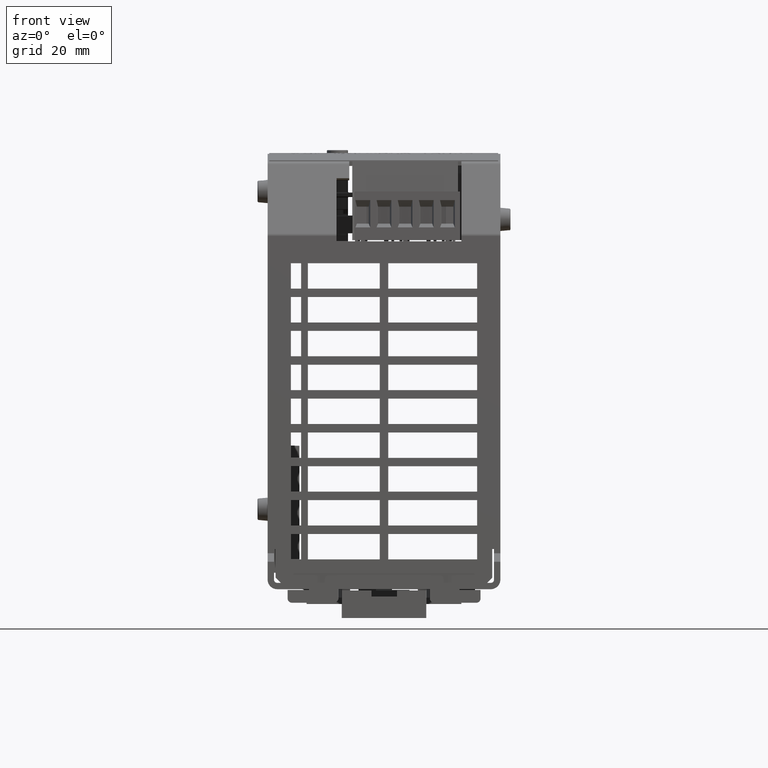
[diagram: clean part render]
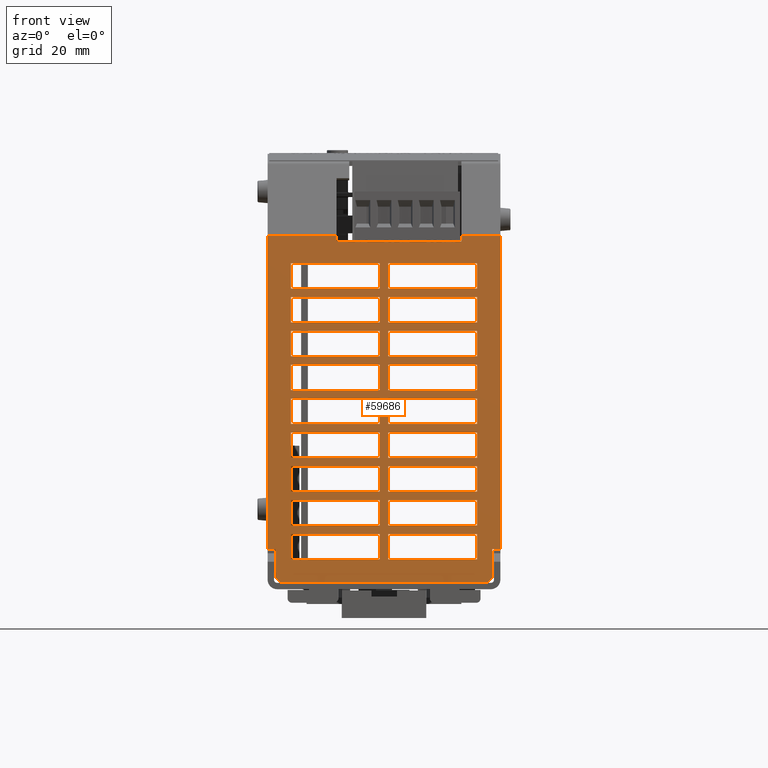
[diagram: same view with one face highlighted and labeled with its STEP entity id]
A machine part, front view. The second image highlights one B-rep face of the part: STEP entity #59686.
In plain terms, the highlighted planar face has unit normal (0, -1, 0).
Its self-contained STEP definition (entity closure, byte-faithful):
#58955=CARTESIAN_POINT('',(1.082677165354314,-2.204724409448971,3.297102970390315));
#58956=DIRECTION('',(0.0,-1.0,0.0));
#58957=DIRECTION('',(1.0,0.0,0.0));
#58958=AXIS2_PLACEMENT_3D('',#58955,#58956,#58957);
#58959=PLANE('',#58958);
#58960=CARTESIAN_POINT('',(0.960629921259829,-2.204724409448818,0.059055118110215));
#58961=VERTEX_POINT('',#58960);
#58962=CARTESIAN_POINT('',(-0.960629921259622,-2.204724409448821,0.059055118110235));
#58963=VERTEX_POINT('',#58962);
#58964=CARTESIAN_POINT('',(0.960629921259829,-2.204724409448971,0.059055118110238));
#58965=DIRECTION('',(-1.0,0.0,0.0));
#58966=VECTOR('',#58965,1.921259842519451);
#58967=LINE('',#58964,#58966);
#58968=EDGE_CURVE('',#58961,#58963,#58967,.T.);
#58969=ORIENTED_EDGE('',*,*,#58968,.F.);
#58970=CARTESIAN_POINT('',(1.007874015748031,-2.204724409448821,0.10629921259838));
#58971=VERTEX_POINT('',#58970);
#58972=CARTESIAN_POINT('',(0.960629921259829,-2.204724409448818,0.059055118110215));
#58973=DIRECTION('',(0.707106781186823,-3.988035E-014,0.707106781186272));
#58974=VECTOR('',#58973,0.066813239167225);
#58975=LINE('',#58972,#58974);
#58976=EDGE_CURVE('',#58961,#58971,#58975,.T.);
#58977=ORIENTED_EDGE('',*,*,#58976,.T.);
#58978=CARTESIAN_POINT('',(1.007874015748039,-2.20472440944882,0.374015748031467));
#58979=VERTEX_POINT('',#58978);
#58980=CARTESIAN_POINT('',(1.007874015748031,-2.204724409448821,0.10629921259838));
#58981=DIRECTION('',(0.0,0.0,1.0));
#58982=VECTOR('',#58981,0.267716535433087);
#58983=LINE('',#58980,#58982);
#58984=EDGE_CURVE('',#58971,#58979,#58983,.T.);
#58985=ORIENTED_EDGE('',*,*,#58984,.T.);
#58986=CARTESIAN_POINT('',(1.082677165354312,-2.204724409448824,0.374015748031457));
#58987=VERTEX_POINT('',#58986);
#58988=CARTESIAN_POINT('',(1.007874015748039,-2.20472440944882,0.374015748031467));
#58989=DIRECTION('',(1.0,-5.343094E-014,-1.306090E-013));
#58990=VECTOR('',#58989,0.074803149606273);
#58991=LINE('',#58988,#58990);
#58992=EDGE_CURVE('',#58979,#58987,#58991,.T.);
#58993=ORIENTED_EDGE('',*,*,#58992,.T.);
#58994=CARTESIAN_POINT('',(1.082677165354312,-2.204724409448827,3.286387887925589));
#58995=VERTEX_POINT('',#58994);
#58996=CARTESIAN_POINT('',(1.082677165354312,-2.204724409448824,0.374015748031457));
#58997=DIRECTION('',(0.0,0.0,1.0));
#58998=VECTOR('',#58997,2.912372139894131);
#58999=LINE('',#58996,#58998);
#59000=EDGE_CURVE('',#58987,#58995,#58999,.T.);
#59001=ORIENTED_EDGE('',*,*,#59000,.T.);
#59002=CARTESIAN_POINT('',(0.720472440944872,-2.204724409448827,3.286387887925584));
#59003=VERTEX_POINT('',#59002);
#59004=CARTESIAN_POINT('',(0.720472440944872,-2.204724409448827,3.286387887925584));
#59005=DIRECTION('',(1.0,0.0,0.0));
#59006=VECTOR('',#59005,0.36220472440944);
#59007=LINE('',#59004,#59006);
#59008=EDGE_CURVE('',#59003,#58995,#59007,.T.);
#59009=ORIENTED_EDGE('',*,*,#59008,.F.);
#59010=CARTESIAN_POINT('',(0.720472440944872,-2.204724409448971,3.237014947515734));
#59011=VERTEX_POINT('',#59010);
#59012=CARTESIAN_POINT('',(0.720472440944872,-2.204724409448827,3.286387887925584));
#59013=DIRECTION('',(0.0,-2.905252E-012,-1.0));
#59014=VECTOR('',#59013,0.04937294040985);
#59015=LINE('',#59012,#59014);
#59016=EDGE_CURVE('',#59003,#59011,#59015,.T.);
#59017=ORIENTED_EDGE('',*,*,#59016,.T.);
#59018=CARTESIAN_POINT('',(-0.440944881889774,-2.204724409448971,3.237014947515734));
#59019=VERTEX_POINT('',#59018);
#59020=CARTESIAN_POINT('',(0.720472440944872,-2.204724409448971,3.237014947515734));
#59021=DIRECTION('',(-1.0,0.0,0.0));
#59022=VECTOR('',#59021,1.161417322834647);
#59023=LINE('',#59020,#59022);
#59024=EDGE_CURVE('',#59011,#59019,#59023,.T.);
#59025=ORIENTED_EDGE('',*,*,#59024,.T.);
#59026=CARTESIAN_POINT('',(-0.440944881889774,-2.204724409448827,3.286387887925584));
#59027=VERTEX_POINT('',#59026);
#59028=CARTESIAN_POINT('',(-0.440944881889774,-2.204724409448971,3.237014947515734));
#59029=DIRECTION('',(0.0,2.905252E-012,1.0));
#59030=VECTOR('',#59029,0.04937294040985);
#59031=LINE('',#59028,#59030);
#59032=EDGE_CURVE('',#59019,#59027,#59031,.T.);
#59033=ORIENTED_EDGE('',*,*,#59032,.T.);
#59034=CARTESIAN_POINT('',(-1.08267716535435,-2.204724409448827,3.286387887925585));
#59035=VERTEX_POINT('',#59034);
#59036=CARTESIAN_POINT('',(-1.08267716535435,-2.204724409448827,3.286387887925585));
#59037=DIRECTION('',(1.0,0.0,0.0));
#59038=VECTOR('',#59037,0.641732283464575);
#59039=LINE('',#59036,#59038);
#59040=EDGE_CURVE('',#59035,#59027,#59039,.T.);
#59041=ORIENTED_EDGE('',*,*,#59040,.F.);
#59042=CARTESIAN_POINT('',(-1.082677165354348,-2.204724409448821,0.374015748031502));
#59043=VERTEX_POINT('',#59042);
#59044=CARTESIAN_POINT('',(-1.082677165354348,-2.204724409448821,0.374015748031502));
#59045=DIRECTION('',(0.0,0.0,1.0));
#59046=VECTOR('',#59045,2.912372139894083);
#59047=LINE('',#59044,#59046);
#59048=EDGE_CURVE('',#59043,#59035,#59047,.T.);
#59049=ORIENTED_EDGE('',*,*,#59048,.F.);
#59050=CARTESIAN_POINT('',(-1.007874015748046,-2.204724409448824,0.374015748031485));
#59051=VERTEX_POINT('',#59050);
#59052=CARTESIAN_POINT('',(-1.082677165354348,-2.204724409448821,0.374015748031502));
#59053=DIRECTION('',(1.0,-3.562063E-014,-2.270815E-013));
#59054=VECTOR('',#59053,0.074803149606303);
#59055=LINE('',#59052,#59054);
#59056=EDGE_CURVE('',#59043,#59051,#59055,.T.);
#59057=ORIENTED_EDGE('',*,*,#59056,.T.);
#59058=CARTESIAN_POINT('',(-1.007874015748047,-2.204724409448821,0.106299212598639));
#59059=VERTEX_POINT('',#59058);
#59060=CARTESIAN_POINT('',(-1.007874015748046,-2.204724409448824,0.374015748031485));
#59061=DIRECTION('',(0.0,0.0,-1.0));
#59062=VECTOR('',#59061,0.267716535432846);
#59063=LINE('',#59060,#59062);
#59064=EDGE_CURVE('',#59051,#59059,#59063,.T.);
#59065=ORIENTED_EDGE('',*,*,#59064,.T.);
#59066=CARTESIAN_POINT('',(-1.007874015748047,-2.204724409448821,0.106299212598639));
#59067=DIRECTION('',(0.707106781186703,0.0,-0.707106781186392));
#59068=VECTOR('',#59067,0.066813239167552);
#59069=LINE('',#59066,#59068);
#59070=EDGE_CURVE('',#59059,#58963,#59069,.T.);
#59071=ORIENTED_EDGE('',*,*,#59070,.T.);
#59072=EDGE_LOOP('',(#58969,#58977,#58985,#58993,#59001,#59009,#59017,#59025,#59033,#59041,#59049,#59057,#59065,#59071));
#59073=FACE_OUTER_BOUND('',#59072,.T.);
#59074=CARTESIAN_POINT('',(-0.866141732283349,-2.204724409448823,0.277559055118096));
#59075=VERTEX_POINT('',#59074);
#59076=CARTESIAN_POINT('',(-0.866141732283349,-2.204724409448823,0.513779527559042));
#59077=VERTEX_POINT('',#59076);
#59078=CARTESIAN_POINT('',(-0.866141732283349,-2.204724409448823,0.277559055118096));
#59079=DIRECTION('',(0.0,0.0,1.0));
#59080=VECTOR('',#59079,0.236220472440946);
#59081=LINE('',#59078,#59080);
#59082=EDGE_CURVE('',#59075,#59077,#59081,.T.);
#59083=ORIENTED_EDGE('',*,*,#59082,.T.);
#59084=CARTESIAN_POINT('',(-0.039370078740041,-2.204724409448823,0.513779527559042));
#59085=VERTEX_POINT('',#59084);
#59086=CARTESIAN_POINT('',(-0.866141732283349,-2.204724409448823,0.513779527559042));
#59087=DIRECTION('',(1.0,0.0,0.0));
#59088=VECTOR('',#59087,0.826771653543308);
#59089=LINE('',#59086,#59088);
#59090=EDGE_CURVE('',#59077,#59085,#59089,.T.);
#59091=ORIENTED_EDGE('',*,*,#59090,.T.);
#59092=CARTESIAN_POINT('',(-0.039370078740041,-2.204724409448823,0.277559055118096));
#59093=VERTEX_POINT('',#59092);
#59094=CARTESIAN_POINT('',(-0.039370078740041,-2.204724409448823,0.513779527559042));
#59095=DIRECTION('',(0.0,0.0,-1.0));
#59096=VECTOR('',#59095,0.236220472440946);
#59097=LINE('',#59094,#59096);
#59098=EDGE_CURVE('',#59085,#59093,#59097,.T.);
#59099=ORIENTED_EDGE('',*,*,#59098,.T.);
#59100=CARTESIAN_POINT('',(-0.039370078740041,-2.204724409448823,0.277559055118096));
#59101=DIRECTION('',(-1.0,0.0,0.0));
#59102=VECTOR('',#59101,0.826771653543307);
#59103=LINE('',#59100,#59102);
#59104=EDGE_CURVE('',#59093,#59075,#59103,.T.);
#59105=ORIENTED_EDGE('',*,*,#59104,.T.);
#59106=EDGE_LOOP('',(#59083,#59091,#59099,#59105));
#59107=FACE_BOUND('',#59106,.T.);
#59108=CARTESIAN_POINT('',(-0.866141732283348,-2.204724409448823,0.592519685039357));
#59109=VERTEX_POINT('',#59108);
#59110=CARTESIAN_POINT('',(-0.866141732283347,-2.204724409448824,0.828740157480302));
#59111=VERTEX_POINT('',#59110);
#59112=CARTESIAN_POINT('',(-0.866141732283348,-2.204724409448823,0.592519685039357));
#59113=DIRECTION('',(0.0,0.0,1.0));
#59114=VECTOR('',#59113,0.236220472440944);
#59115=LINE('',#59112,#59114);
#59116=EDGE_CURVE('',#59109,#59111,#59115,.T.);
#59117=ORIENTED_EDGE('',*,*,#59116,.T.);
#59118=CARTESIAN_POINT('',(-0.039370078740041,-2.204724409448824,0.828740157480302));
#59119=VERTEX_POINT('',#59118);
#59120=CARTESIAN_POINT('',(-0.866141732283347,-2.204724409448824,0.828740157480302));
#59121=DIRECTION('',(1.0,0.0,0.0));
#59122=VECTOR('',#59121,0.826771653543307);
#59123=LINE('',#59120,#59122);
#59124=EDGE_CURVE('',#59111,#59119,#59123,.T.);
#59125=ORIENTED_EDGE('',*,*,#59124,.T.);
#59126=CARTESIAN_POINT('',(-0.039370078740041,-2.204724409448823,0.592519685039357));
#59127=VERTEX_POINT('',#59126);
#59128=CARTESIAN_POINT('',(-0.039370078740041,-2.204724409448824,0.828740157480302));
#59129=DIRECTION('',(0.0,0.0,-1.0));
#59130=VECTOR('',#59129,0.236220472440944);
#59131=LINE('',#59128,#59130);
#59132=EDGE_CURVE('',#59119,#59127,#59131,.T.);
#59133=ORIENTED_EDGE('',*,*,#59132,.T.);
#59134=CARTESIAN_POINT('',(-0.039370078740041,-2.204724409448823,0.592519685039357));
#59135=DIRECTION('',(-1.0,0.0,0.0));
#59136=VECTOR('',#59135,0.826771653543307);
#59137=LINE('',#59134,#59136);
#59138=EDGE_CURVE('',#59127,#59109,#59137,.T.);
#59139=ORIENTED_EDGE('',*,*,#59138,.T.);
#59140=EDGE_LOOP('',(#59117,#59125,#59133,#59139));
#59141=FACE_BOUND('',#59140,.T.);
#59142=CARTESIAN_POINT('',(-0.866141732283348,-2.204724409448824,0.907480314960617));
#59143=VERTEX_POINT('',#59142);
#59144=CARTESIAN_POINT('',(-0.866141732283347,-2.204724409448824,1.143700787401562));
#59145=VERTEX_POINT('',#59144);
#59146=CARTESIAN_POINT('',(-0.866141732283348,-2.204724409448824,0.907480314960617));
#59147=DIRECTION('',(0.0,0.0,1.0));
#59148=VECTOR('',#59147,0.236220472440945);
#59149=LINE('',#59146,#59148);
#59150=EDGE_CURVE('',#59143,#59145,#59149,.T.);
#59151=ORIENTED_EDGE('',*,*,#59150,.T.);
#59152=CARTESIAN_POINT('',(-0.039370078740041,-2.204724409448824,1.143700787401562));
#59153=VERTEX_POINT('',#59152);
#59154=CARTESIAN_POINT('',(-0.866141732283347,-2.204724409448824,1.143700787401562));
#59155=DIRECTION('',(1.0,0.0,0.0));
#59156=VECTOR('',#59155,0.826771653543307);
#59157=LINE('',#59154,#59156);
#59158=EDGE_CURVE('',#59145,#59153,#59157,.T.);
#59159=ORIENTED_EDGE('',*,*,#59158,.T.);
#59160=CARTESIAN_POINT('',(-0.039370078740041,-2.204724409448824,0.907480314960617));
#59161=VERTEX_POINT('',#59160);
#59162=CARTESIAN_POINT('',(-0.039370078740041,-2.204724409448824,1.143700787401562));
#59163=DIRECTION('',(0.0,0.0,-1.0));
#59164=VECTOR('',#59163,0.236220472440945);
#59165=LINE('',#59162,#59164);
#59166=EDGE_CURVE('',#59153,#59161,#59165,.T.);
#59167=ORIENTED_EDGE('',*,*,#59166,.T.);
#59168=CARTESIAN_POINT('',(-0.039370078740041,-2.204724409448824,0.907480314960617));
#59169=DIRECTION('',(-1.0,0.0,0.0));
#59170=VECTOR('',#59169,0.826771653543307);
#59171=LINE('',#59168,#59170);
#59172=EDGE_CURVE('',#59161,#59143,#59171,.T.);
#59173=ORIENTED_EDGE('',*,*,#59172,.T.);
#59174=EDGE_LOOP('',(#59151,#59159,#59167,#59173));
#59175=FACE_BOUND('',#59174,.T.);
#59176=CARTESIAN_POINT('',(-0.866141732283347,-2.204724409448824,1.222440944881878));
#59177=VERTEX_POINT('',#59176);
#59178=CARTESIAN_POINT('',(-0.866141732283347,-2.204724409448824,1.458661417322824));
#59179=VERTEX_POINT('',#59178);
#59180=CARTESIAN_POINT('',(-0.866141732283347,-2.204724409448824,1.222440944881878));
#59181=DIRECTION('',(0.0,0.0,1.0));
#59182=VECTOR('',#59181,0.236220472440946);
#59183=LINE('',#59180,#59182);
#59184=EDGE_CURVE('',#59177,#59179,#59183,.T.);
#59185=ORIENTED_EDGE('',*,*,#59184,.T.);
#59186=CARTESIAN_POINT('',(-0.039370078740041,-2.204724409448824,1.458661417322824));
#59187=VERTEX_POINT('',#59186);
#59188=CARTESIAN_POINT('',(-0.866141732283347,-2.204724409448824,1.458661417322824));
#59189=DIRECTION('',(1.0,0.0,0.0));
#59190=VECTOR('',#59189,0.826771653543307);
#59191=LINE('',#59188,#59190);
#59192=EDGE_CURVE('',#59179,#59187,#59191,.T.);
#59193=ORIENTED_EDGE('',*,*,#59192,.T.);
#59194=CARTESIAN_POINT('',(-0.039370078740041,-2.204724409448824,1.222440944881878));
#59195=VERTEX_POINT('',#59194);
#59196=CARTESIAN_POINT('',(-0.039370078740041,-2.204724409448824,1.458661417322824));
#59197=DIRECTION('',(0.0,0.0,-1.0));
#59198=VECTOR('',#59197,0.236220472440945);
#59199=LINE('',#59196,#59198);
#59200=EDGE_CURVE('',#59187,#59195,#59199,.T.);
#59201=ORIENTED_EDGE('',*,*,#59200,.T.);
#59202=CARTESIAN_POINT('',(-0.039370078740041,-2.204724409448824,1.222440944881878));
#59203=DIRECTION('',(-1.0,0.0,0.0));
#59204=VECTOR('',#59203,0.826771653543307);
#59205=LINE('',#59202,#59204);
#59206=EDGE_CURVE('',#59195,#59177,#59205,.T.);
#59207=ORIENTED_EDGE('',*,*,#59206,.T.);
#59208=EDGE_LOOP('',(#59185,#59193,#59201,#59207));
#59209=FACE_BOUND('',#59208,.T.);
#59210=CARTESIAN_POINT('',(-0.866141732283347,-2.204724409448827,1.537401574803137));
#59211=VERTEX_POINT('',#59210);
#59212=CARTESIAN_POINT('',(-0.866141732283347,-2.204724409448825,1.773622047244082));
#59213=VERTEX_POINT('',#59212);
#59214=CARTESIAN_POINT('',(-0.866141732283347,-2.204724409448827,1.537401574803137));
#59215=DIRECTION('',(0.0,0.0,1.0));
#59216=VECTOR('',#59215,0.236220472440946);
#59217=LINE('',#59214,#59216);
#59218=EDGE_CURVE('',#59211,#59213,#59217,.T.);
#59219=ORIENTED_EDGE('',*,*,#59218,.T.);
#59220=CARTESIAN_POINT('',(-0.03937007874004,-2.204724409448825,1.773622047244082));
#59221=VERTEX_POINT('',#59220);
#59222=CARTESIAN_POINT('',(-0.866141732283347,-2.204724409448825,1.773622047244082));
#59223=DIRECTION('',(1.0,0.0,0.0));
#59224=VECTOR('',#59223,0.826771653543307);
#59225=LINE('',#59222,#59224);
#59226=EDGE_CURVE('',#59213,#59221,#59225,.T.);
#59227=ORIENTED_EDGE('',*,*,#59226,.T.);
#59228=CARTESIAN_POINT('',(-0.039370078740041,-2.204724409448827,1.537401574803137));
#59229=VERTEX_POINT('',#59228);
#59230=CARTESIAN_POINT('',(-0.03937007874004,-2.204724409448825,1.773622047244082));
#59231=DIRECTION('',(0.0,0.0,-1.0));
#59232=VECTOR('',#59231,0.236220472440946);
#59233=LINE('',#59230,#59232);
#59234=EDGE_CURVE('',#59221,#59229,#59233,.T.);
#59235=ORIENTED_EDGE('',*,*,#59234,.T.);
#59236=CARTESIAN_POINT('',(-0.039370078740041,-2.204724409448827,1.537401574803137));
#59237=DIRECTION('',(-1.0,0.0,0.0));
#59238=VECTOR('',#59237,0.826771653543307);
#59239=LINE('',#59236,#59238);
#59240=EDGE_CURVE('',#59229,#59211,#59239,.T.);
#59241=ORIENTED_EDGE('',*,*,#59240,.T.);
#59242=EDGE_LOOP('',(#59219,#59227,#59235,#59241));
#59243=FACE_BOUND('',#59242,.T.);
#59244=CARTESIAN_POINT('',(-0.866141732283347,-2.204724409448827,1.852362204724398));
#59245=VERTEX_POINT('',#59244);
#59246=CARTESIAN_POINT('',(-0.866141732283347,-2.204724409448827,2.088582677165343));
#59247=VERTEX_POINT('',#59246);
#59248=CARTESIAN_POINT('',(-0.866141732283347,-2.204724409448827,1.852362204724398));
#59249=DIRECTION('',(0.0,0.0,1.0));
#59250=VECTOR('',#59249,0.236220472440945);
#59251=LINE('',#59248,#59250);
#59252=EDGE_CURVE('',#59245,#59247,#59251,.T.);
#59253=ORIENTED_EDGE('',*,*,#59252,.T.);
#59254=CARTESIAN_POINT('',(-0.03937007874004,-2.204724409448827,2.088582677165343));
#59255=VERTEX_POINT('',#59254);
#59256=CARTESIAN_POINT('',(-0.866141732283347,-2.204724409448827,2.088582677165343));
#59257=DIRECTION('',(1.0,0.0,0.0));
#59258=VECTOR('',#59257,0.826771653543307);
#59259=LINE('',#59256,#59258);
#59260=EDGE_CURVE('',#59247,#59255,#59259,.T.);
#59261=ORIENTED_EDGE('',*,*,#59260,.T.);
#59262=CARTESIAN_POINT('',(-0.039370078740041,-2.204724409448827,1.852362204724398));
#59263=VERTEX_POINT('',#59262);
#59264=CARTESIAN_POINT('',(-0.03937007874004,-2.204724409448827,2.088582677165343));
#59265=DIRECTION('',(0.0,0.0,-1.0));
#59266=VECTOR('',#59265,0.236220472440945);
#59267=LINE('',#59264,#59266);
#59268=EDGE_CURVE('',#59255,#59263,#59267,.T.);
#59269=ORIENTED_EDGE('',*,*,#59268,.T.);
#59270=CARTESIAN_POINT('',(-0.039370078740041,-2.204724409448827,1.852362204724398));
#59271=DIRECTION('',(-1.0,0.0,0.0));
#59272=VECTOR('',#59271,0.826771653543307);
#59273=LINE('',#59270,#59272);
#59274=EDGE_CURVE('',#59263,#59245,#59273,.T.);
#59275=ORIENTED_EDGE('',*,*,#59274,.T.);
#59276=EDGE_LOOP('',(#59253,#59261,#59269,#59275));
#59277=FACE_BOUND('',#59276,.T.);
#59278=CARTESIAN_POINT('',(-0.866141732283347,-2.204724409448829,2.167322834645659));
#59279=VERTEX_POINT('',#59278);
#59280=CARTESIAN_POINT('',(-0.866141732283347,-2.204724409448827,2.403543307086602));
#59281=VERTEX_POINT('',#59280);
#59282=CARTESIAN_POINT('',(-0.866141732283347,-2.204724409448829,2.167322834645659));
#59283=DIRECTION('',(0.0,0.0,1.0));
#59284=VECTOR('',#59283,0.236220472440943);
#59285=LINE('',#59282,#59284);
#59286=EDGE_CURVE('',#59279,#59281,#59285,.T.);
#59287=ORIENTED_EDGE('',*,*,#59286,.T.);
#59288=CARTESIAN_POINT('',(-0.03937007874004,-2.204724409448827,2.403543307086602));
#59289=VERTEX_POINT('',#59288);
#59290=CARTESIAN_POINT('',(-0.866141732283347,-2.204724409448827,2.403543307086602));
#59291=DIRECTION('',(1.0,0.0,0.0));
#59292=VECTOR('',#59291,0.826771653543307);
#59293=LINE('',#59290,#59292);
#59294=EDGE_CURVE('',#59281,#59289,#59293,.T.);
#59295=ORIENTED_EDGE('',*,*,#59294,.T.);
#59296=CARTESIAN_POINT('',(-0.039370078740041,-2.204724409448829,2.167322834645659));
#59297=VERTEX_POINT('',#59296);
#59298=CARTESIAN_POINT('',(-0.03937007874004,-2.204724409448827,2.403543307086602));
#59299=DIRECTION('',(0.0,0.0,-1.0));
#59300=VECTOR('',#59299,0.236220472440943);
#59301=LINE('',#59298,#59300);
#59302=EDGE_CURVE('',#59289,#59297,#59301,.T.);
#59303=ORIENTED_EDGE('',*,*,#59302,.T.);
#59304=CARTESIAN_POINT('',(-0.039370078740041,-2.204724409448829,2.167322834645659));
#59305=DIRECTION('',(-1.0,0.0,0.0));
#59306=VECTOR('',#59305,0.826771653543307);
#59307=LINE('',#59304,#59306);
#59308=EDGE_CURVE('',#59297,#59279,#59307,.T.);
#59309=ORIENTED_EDGE('',*,*,#59308,.T.);
#59310=EDGE_LOOP('',(#59287,#59295,#59303,#59309));
#59311=FACE_BOUND('',#59310,.T.);
#59312=CARTESIAN_POINT('',(-0.866141732283347,-2.204724409448829,2.482283464566918));
#59313=VERTEX_POINT('',#59312);
#59314=CARTESIAN_POINT('',(-0.866141732283348,-2.204724409448829,2.718503937007863));
#59315=VERTEX_POINT('',#59314);
#59316=CARTESIAN_POINT('',(-0.866141732283347,-2.204724409448829,2.482283464566918));
#59317=DIRECTION('',(0.0,0.0,1.0));
#59318=VECTOR('',#59317,0.236220472440945);
#59319=LINE('',#59316,#59318);
#59320=EDGE_CURVE('',#59313,#59315,#59319,.T.);
#59321=ORIENTED_EDGE('',*,*,#59320,.T.);
#59322=CARTESIAN_POINT('',(-0.03937007874004,-2.204724409448829,2.718503937007863));
#59323=VERTEX_POINT('',#59322);
#59324=CARTESIAN_POINT('',(-0.866141732283348,-2.204724409448829,2.718503937007863));
#59325=DIRECTION('',(1.0,0.0,0.0));
#59326=VECTOR('',#59325,0.826771653543308);
#59327=LINE('',#59324,#59326);
#59328=EDGE_CURVE('',#59315,#59323,#59327,.T.);
#59329=ORIENTED_EDGE('',*,*,#59328,.T.);
#59330=CARTESIAN_POINT('',(-0.03937007874004,-2.204724409448829,2.482283464566918));
#59331=VERTEX_POINT('',#59330);
#59332=CARTESIAN_POINT('',(-0.03937007874004,-2.204724409448829,2.718503937007863));
#59333=DIRECTION('',(0.0,0.0,-1.0));
#59334=VECTOR('',#59333,0.236220472440945);
#59335=LINE('',#59332,#59334);
#59336=EDGE_CURVE('',#59323,#59331,#59335,.T.);
#59337=ORIENTED_EDGE('',*,*,#59336,.T.);
#59338=CARTESIAN_POINT('',(-0.03937007874004,-2.204724409448829,2.482283464566918));
#59339=DIRECTION('',(-1.0,0.0,0.0));
#59340=VECTOR('',#59339,0.826771653543307);
#59341=LINE('',#59338,#59340);
#59342=EDGE_CURVE('',#59331,#59313,#59341,.T.);
#59343=ORIENTED_EDGE('',*,*,#59342,.T.);
#59344=EDGE_LOOP('',(#59321,#59329,#59337,#59343));
#59345=FACE_BOUND('',#59344,.T.);
#59346=CARTESIAN_POINT('',(-0.866141732283348,-2.20472440944883,2.797244094488177));
#59347=VERTEX_POINT('',#59346);
#59348=CARTESIAN_POINT('',(-0.866141732283349,-2.204724409448829,3.033464566929123));
#59349=VERTEX_POINT('',#59348);
#59350=CARTESIAN_POINT('',(-0.866141732283348,-2.20472440944883,2.797244094488177));
#59351=DIRECTION('',(0.0,0.0,1.0));
#59352=VECTOR('',#59351,0.236220472440945);
#59353=LINE('',#59350,#59352);
#59354=EDGE_CURVE('',#59347,#59349,#59353,.T.);
#59355=ORIENTED_EDGE('',*,*,#59354,.T.);
#59356=CARTESIAN_POINT('',(-0.039370078740041,-2.204724409448829,3.033464566929123));
#59357=VERTEX_POINT('',#59356);
#59358=CARTESIAN_POINT('',(-0.866141732283349,-2.204724409448829,3.033464566929123));
#59359=DIRECTION('',(1.0,0.0,0.0));
#59360=VECTOR('',#59359,0.826771653543307);
#59361=LINE('',#59358,#59360);
#59362=EDGE_CURVE('',#59349,#59357,#59361,.T.);
#59363=ORIENTED_EDGE('',*,*,#59362,.T.);
#59364=CARTESIAN_POINT('',(-0.03937007874004,-2.20472440944883,2.797244094488177));
#59365=VERTEX_POINT('',#59364);
#59366=CARTESIAN_POINT('',(-0.039370078740041,-2.204724409448829,3.033464566929123));
#59367=DIRECTION('',(0.0,0.0,-1.0));
#59368=VECTOR('',#59367,0.236220472440945);
#59369=LINE('',#59366,#59368);
#59370=EDGE_CURVE('',#59357,#59365,#59369,.T.);
#59371=ORIENTED_EDGE('',*,*,#59370,.T.);
#59372=CARTESIAN_POINT('',(-0.03937007874004,-2.20472440944883,2.797244094488177));
#59373=DIRECTION('',(-1.0,0.0,0.0));
#59374=VECTOR('',#59373,0.826771653543308);
#59375=LINE('',#59372,#59374);
#59376=EDGE_CURVE('',#59365,#59347,#59375,.T.);
#59377=ORIENTED_EDGE('',*,*,#59376,.T.);
#59378=EDGE_LOOP('',(#59355,#59363,#59371,#59377));
#59379=FACE_BOUND('',#59378,.T.);
#59380=CARTESIAN_POINT('',(0.039370078740273,-2.204724409448821,0.277559055118096));
#59381=VERTEX_POINT('',#59380);
#59382=CARTESIAN_POINT('',(0.039370078740274,-2.204724409448823,0.513779527559042));
#59383=VERTEX_POINT('',#59382);
#59384=CARTESIAN_POINT('',(0.039370078740273,-2.204724409448821,0.277559055118096));
#59385=DIRECTION('',(0.0,0.0,1.0));
#59386=VECTOR('',#59385,0.236220472440946);
#59387=LINE('',#59384,#59386);
#59388=EDGE_CURVE('',#59381,#59383,#59387,.T.);
#59389=ORIENTED_EDGE('',*,*,#59388,.T.);
#59390=CARTESIAN_POINT('',(0.866141732283581,-2.204724409448823,0.513779527559042));
#59391=VERTEX_POINT('',#59390);
#59392=CARTESIAN_POINT('',(0.039370078740274,-2.204724409448823,0.513779527559042));
#59393=DIRECTION('',(1.0,0.0,0.0));
#59394=VECTOR('',#59393,0.826771653543306);
#59395=LINE('',#59392,#59394);
#59396=EDGE_CURVE('',#59383,#59391,#59395,.T.);
#59397=ORIENTED_EDGE('',*,*,#59396,.T.);
#59398=CARTESIAN_POINT('',(0.866141732283581,-2.204724409448821,0.277559055118096));
#59399=VERTEX_POINT('',#59398);
#59400=CARTESIAN_POINT('',(0.866141732283581,-2.204724409448823,0.513779527559042));
#59401=DIRECTION('',(0.0,0.0,-1.0));
#59402=VECTOR('',#59401,0.236220472440946);
#59403=LINE('',#59400,#59402);
#59404=EDGE_CURVE('',#59391,#59399,#59403,.T.);
#59405=ORIENTED_EDGE('',*,*,#59404,.T.);
#59406=CARTESIAN_POINT('',(0.866141732283581,-2.204724409448821,0.277559055118096));
#59407=DIRECTION('',(-1.0,0.0,0.0));
#59408=VECTOR('',#59407,0.826771653543308);
#59409=LINE('',#59406,#59408);
#59410=EDGE_CURVE('',#59399,#59381,#59409,.T.);
#59411=ORIENTED_EDGE('',*,*,#59410,.T.);
#59412=EDGE_LOOP('',(#59389,#59397,#59405,#59411));
#59413=FACE_BOUND('',#59412,.T.);
#59414=CARTESIAN_POINT('',(0.039370078740274,-2.204724409448821,0.592519685039356));
#59415=VERTEX_POINT('',#59414);
#59416=CARTESIAN_POINT('',(0.039370078740274,-2.204724409448821,0.828740157480302));
#59417=VERTEX_POINT('',#59416);
#59418=CARTESIAN_POINT('',(0.039370078740274,-2.204724409448821,0.592519685039356));
#59419=DIRECTION('',(0.0,0.0,1.0));
#59420=VECTOR('',#59419,0.236220472440946);
#59421=LINE('',#59418,#59420);
#59422=EDGE_CURVE('',#59415,#59417,#59421,.T.);
#59423=ORIENTED_EDGE('',*,*,#59422,.T.);
#59424=CARTESIAN_POINT('',(0.866141732283581,-2.204724409448821,0.828740157480302));
#59425=VERTEX_POINT('',#59424);
#59426=CARTESIAN_POINT('',(0.039370078740274,-2.204724409448821,0.828740157480302));
#59427=DIRECTION('',(1.0,0.0,0.0));
#59428=VECTOR('',#59427,0.826771653543306);
#59429=LINE('',#59426,#59428);
#59430=EDGE_CURVE('',#59417,#59425,#59429,.T.);
#59431=ORIENTED_EDGE('',*,*,#59430,.T.);
#59432=CARTESIAN_POINT('',(0.866141732283581,-2.204724409448821,0.592519685039356));
#59433=VERTEX_POINT('',#59432);
#59434=CARTESIAN_POINT('',(0.866141732283581,-2.204724409448821,0.828740157480302));
#59435=DIRECTION('',(0.0,0.0,-1.0));
#59436=VECTOR('',#59435,0.236220472440946);
#59437=LINE('',#59434,#59436);
#59438=EDGE_CURVE('',#59425,#59433,#59437,.T.);
#59439=ORIENTED_EDGE('',*,*,#59438,.T.);
#59440=CARTESIAN_POINT('',(0.866141732283581,-2.204724409448821,0.592519685039356));
#59441=DIRECTION('',(-1.0,0.0,0.0));
#59442=VECTOR('',#59441,0.826771653543306);
#59443=LINE('',#59440,#59442);
#59444=EDGE_CURVE('',#59433,#59415,#59443,.T.);
#59445=ORIENTED_EDGE('',*,*,#59444,.T.);
#59446=EDGE_LOOP('',(#59423,#59431,#59439,#59445));
#59447=FACE_BOUND('',#59446,.T.);
#59448=CARTESIAN_POINT('',(0.039370078740274,-2.204724409448823,0.907480314960617));
#59449=VERTEX_POINT('',#59448);
#59450=CARTESIAN_POINT('',(0.039370078740274,-2.204724409448823,1.143700787401562));
#59451=VERTEX_POINT('',#59450);
#59452=CARTESIAN_POINT('',(0.039370078740274,-2.204724409448823,0.907480314960617));
#59453=DIRECTION('',(0.0,0.0,1.0));
#59454=VECTOR('',#59453,0.236220472440946);
#59455=LINE('',#59452,#59454);
#59456=EDGE_CURVE('',#59449,#59451,#59455,.T.);
#59457=ORIENTED_EDGE('',*,*,#59456,.T.);
#59458=CARTESIAN_POINT('',(0.866141732283581,-2.204724409448823,1.143700787401562));
#59459=VERTEX_POINT('',#59458);
#59460=CARTESIAN_POINT('',(0.039370078740274,-2.204724409448823,1.143700787401562));
#59461=DIRECTION('',(1.0,0.0,0.0));
#59462=VECTOR('',#59461,0.826771653543306);
#59463=LINE('',#59460,#59462);
#59464=EDGE_CURVE('',#59451,#59459,#59463,.T.);
#59465=ORIENTED_EDGE('',*,*,#59464,.T.);
#59466=CARTESIAN_POINT('',(0.866141732283581,-2.204724409448823,0.907480314960617));
#59467=VERTEX_POINT('',#59466);
#59468=CARTESIAN_POINT('',(0.866141732283581,-2.204724409448823,1.143700787401562));
#59469=DIRECTION('',(0.0,0.0,-1.0));
#59470=VECTOR('',#59469,0.236220472440945);
#59471=LINE('',#59468,#59470);
#59472=EDGE_CURVE('',#59459,#59467,#59471,.T.);
#59473=ORIENTED_EDGE('',*,*,#59472,.T.);
#59474=CARTESIAN_POINT('',(0.866141732283581,-2.204724409448823,0.907480314960617));
#59475=DIRECTION('',(-1.0,0.0,0.0));
#59476=VECTOR('',#59475,0.826771653543306);
#59477=LINE('',#59474,#59476);
#59478=EDGE_CURVE('',#59467,#59449,#59477,.T.);
#59479=ORIENTED_EDGE('',*,*,#59478,.T.);
#59480=EDGE_LOOP('',(#59457,#59465,#59473,#59479));
#59481=FACE_BOUND('',#59480,.T.);
#59482=CARTESIAN_POINT('',(0.039370078740275,-2.204724409448824,1.222440944881877));
#59483=VERTEX_POINT('',#59482);
#59484=CARTESIAN_POINT('',(0.039370078740274,-2.204724409448823,1.458661417322822));
#59485=VERTEX_POINT('',#59484);
#59486=CARTESIAN_POINT('',(0.039370078740275,-2.204724409448824,1.222440944881877));
#59487=DIRECTION('',(0.0,0.0,1.0));
#59488=VECTOR('',#59487,0.236220472440945);
#59489=LINE('',#59486,#59488);
#59490=EDGE_CURVE('',#59483,#59485,#59489,.T.);
#59491=ORIENTED_EDGE('',*,*,#59490,.T.);
#59492=CARTESIAN_POINT('',(0.866141732283583,-2.204724409448823,1.458661417322822));
#59493=VERTEX_POINT('',#59492);
#59494=CARTESIAN_POINT('',(0.039370078740274,-2.204724409448823,1.458661417322822));
#59495=DIRECTION('',(1.0,0.0,0.0));
#59496=VECTOR('',#59495,0.826771653543309);
#59497=LINE('',#59494,#59496);
#59498=EDGE_CURVE('',#59485,#59493,#59497,.T.);
#59499=ORIENTED_EDGE('',*,*,#59498,.T.);
#59500=CARTESIAN_POINT('',(0.86614173228358,-2.204724409448824,1.222440944881877));
#59501=VERTEX_POINT('',#59500);
#59502=CARTESIAN_POINT('',(0.866141732283583,-2.204724409448823,1.458661417322822));
#59503=DIRECTION('',(0.0,0.0,-1.0));
#59504=VECTOR('',#59503,0.236220472440945);
#59505=LINE('',#59502,#59504);
#59506=EDGE_CURVE('',#59493,#59501,#59505,.T.);
#59507=ORIENTED_EDGE('',*,*,#59506,.T.);
#59508=CARTESIAN_POINT('',(0.86614173228358,-2.204724409448824,1.222440944881877));
#59509=DIRECTION('',(-1.0,0.0,0.0));
#59510=VECTOR('',#59509,0.826771653543304);
#59511=LINE('',#59508,#59510);
#59512=EDGE_CURVE('',#59501,#59483,#59511,.T.);
#59513=ORIENTED_EDGE('',*,*,#59512,.T.);
#59514=EDGE_LOOP('',(#59491,#59499,#59507,#59513));
#59515=FACE_BOUND('',#59514,.T.);
#59516=CARTESIAN_POINT('',(0.039370078740275,-2.204724409448825,1.537401574803137));
#59517=VERTEX_POINT('',#59516);
#59518=CARTESIAN_POINT('',(0.039370078740275,-2.204724409448825,1.773622047244083));
#59519=VERTEX_POINT('',#59518);
#59520=CARTESIAN_POINT('',(0.039370078740275,-2.204724409448825,1.537401574803137));
#59521=DIRECTION('',(0.0,0.0,1.0));
#59522=VECTOR('',#59521,0.236220472440946);
#59523=LINE('',#59520,#59522);
#59524=EDGE_CURVE('',#59517,#59519,#59523,.T.);
#59525=ORIENTED_EDGE('',*,*,#59524,.T.);
#59526=CARTESIAN_POINT('',(0.866141732283581,-2.204724409448825,1.773622047244083));
#59527=VERTEX_POINT('',#59526);
#59528=CARTESIAN_POINT('',(0.039370078740275,-2.204724409448825,1.773622047244083));
#59529=DIRECTION('',(1.0,0.0,0.0));
#59530=VECTOR('',#59529,0.826771653543305);
#59531=LINE('',#59528,#59530);
#59532=EDGE_CURVE('',#59519,#59527,#59531,.T.);
#59533=ORIENTED_EDGE('',*,*,#59532,.T.);
#59534=CARTESIAN_POINT('',(0.866141732283581,-2.204724409448825,1.537401574803137));
#59535=VERTEX_POINT('',#59534);
#59536=CARTESIAN_POINT('',(0.866141732283581,-2.204724409448825,1.773622047244083));
#59537=DIRECTION('',(0.0,0.0,-1.0));
#59538=VECTOR('',#59537,0.236220472440946);
#59539=LINE('',#59536,#59538);
#59540=EDGE_CURVE('',#59527,#59535,#59539,.T.);
#59541=ORIENTED_EDGE('',*,*,#59540,.T.);
#59542=CARTESIAN_POINT('',(0.866141732283581,-2.204724409448825,1.537401574803137));
#59543=DIRECTION('',(-1.0,0.0,0.0));
#59544=VECTOR('',#59543,0.826771653543305);
#59545=LINE('',#59542,#59544);
#59546=EDGE_CURVE('',#59535,#59517,#59545,.T.);
#59547=ORIENTED_EDGE('',*,*,#59546,.T.);
#59548=EDGE_LOOP('',(#59525,#59533,#59541,#59547));
#59549=FACE_BOUND('',#59548,.T.);
#59550=CARTESIAN_POINT('',(0.039370078740275,-2.204724409448825,1.852362204724397));
#59551=VERTEX_POINT('',#59550);
#59552=CARTESIAN_POINT('',(0.039370078740275,-2.204724409448827,2.088582677165343));
#59553=VERTEX_POINT('',#59552);
#59554=CARTESIAN_POINT('',(0.039370078740275,-2.204724409448825,1.852362204724397));
#59555=DIRECTION('',(0.0,0.0,1.0));
#59556=VECTOR('',#59555,0.236220472440945);
#59557=LINE('',#59554,#59556);
#59558=EDGE_CURVE('',#59551,#59553,#59557,.T.);
#59559=ORIENTED_EDGE('',*,*,#59558,.T.);
#59560=CARTESIAN_POINT('',(0.866141732283581,-2.204724409448827,2.088582677165343));
#59561=VERTEX_POINT('',#59560);
#59562=CARTESIAN_POINT('',(0.039370078740275,-2.204724409448827,2.088582677165343));
#59563=DIRECTION('',(1.0,0.0,0.0));
#59564=VECTOR('',#59563,0.826771653543305);
#59565=LINE('',#59562,#59564);
#59566=EDGE_CURVE('',#59553,#59561,#59565,.T.);
#59567=ORIENTED_EDGE('',*,*,#59566,.T.);
#59568=CARTESIAN_POINT('',(0.866141732283581,-2.204724409448825,1.852362204724397));
#59569=VERTEX_POINT('',#59568);
#59570=CARTESIAN_POINT('',(0.866141732283581,-2.204724409448827,2.088582677165343));
#59571=DIRECTION('',(0.0,0.0,-1.0));
#59572=VECTOR('',#59571,0.236220472440945);
#59573=LINE('',#59570,#59572);
#59574=EDGE_CURVE('',#59561,#59569,#59573,.T.);
#59575=ORIENTED_EDGE('',*,*,#59574,.T.);
#59576=CARTESIAN_POINT('',(0.866141732283581,-2.204724409448825,1.852362204724397));
#59577=DIRECTION('',(-1.0,0.0,0.0));
#59578=VECTOR('',#59577,0.826771653543305);
#59579=LINE('',#59576,#59578);
#59580=EDGE_CURVE('',#59569,#59551,#59579,.T.);
#59581=ORIENTED_EDGE('',*,*,#59580,.T.);
#59582=EDGE_LOOP('',(#59559,#59567,#59575,#59581));
#59583=FACE_BOUND('',#59582,.T.);
#59584=CARTESIAN_POINT('',(0.039370078740275,-2.204724409448827,2.167322834645657));
#59585=VERTEX_POINT('',#59584);
#59586=CARTESIAN_POINT('',(0.039370078740276,-2.204724409448827,2.403543307086602));
#59587=VERTEX_POINT('',#59586);
#59588=CARTESIAN_POINT('',(0.039370078740275,-2.204724409448827,2.167322834645657));
#59589=DIRECTION('',(0.0,0.0,1.0));
#59590=VECTOR('',#59589,0.236220472440945);
#59591=LINE('',#59588,#59590);
#59592=EDGE_CURVE('',#59585,#59587,#59591,.T.);
#59593=ORIENTED_EDGE('',*,*,#59592,.T.);
#59594=CARTESIAN_POINT('',(0.866141732283581,-2.204724409448827,2.403543307086602));
#59595=VERTEX_POINT('',#59594);
#59596=CARTESIAN_POINT('',(0.039370078740276,-2.204724409448827,2.403543307086602));
#59597=DIRECTION('',(1.0,0.0,0.0));
#59598=VECTOR('',#59597,0.826771653543305);
#59599=LINE('',#59596,#59598);
#59600=EDGE_CURVE('',#59587,#59595,#59599,.T.);
#59601=ORIENTED_EDGE('',*,*,#59600,.T.);
#59602=CARTESIAN_POINT('',(0.866141732283581,-2.204724409448827,2.167322834645657));
#59603=VERTEX_POINT('',#59602);
#59604=CARTESIAN_POINT('',(0.866141732283581,-2.204724409448827,2.403543307086602));
#59605=DIRECTION('',(0.0,0.0,-1.0));
#59606=VECTOR('',#59605,0.236220472440945);
#59607=LINE('',#59604,#59606);
#59608=EDGE_CURVE('',#59595,#59603,#59607,.T.);
#59609=ORIENTED_EDGE('',*,*,#59608,.T.);
#59610=CARTESIAN_POINT('',(0.866141732283581,-2.204724409448827,2.167322834645657));
#59611=DIRECTION('',(-1.0,0.0,0.0));
#59612=VECTOR('',#59611,0.826771653543305);
#59613=LINE('',#59610,#59612);
#59614=EDGE_CURVE('',#59603,#59585,#59613,.T.);
#59615=ORIENTED_EDGE('',*,*,#59614,.T.);
#59616=EDGE_LOOP('',(#59593,#59601,#59609,#59615));
#59617=FACE_BOUND('',#59616,.T.);
#59618=CARTESIAN_POINT('',(0.039370078740276,-2.204724409448827,2.482283464566915));
#59619=VERTEX_POINT('',#59618);
#59620=CARTESIAN_POINT('',(0.039370078740274,-2.204724409448827,2.718503937007864));
#59621=VERTEX_POINT('',#59620);
#59622=CARTESIAN_POINT('',(0.039370078740276,-2.204724409448827,2.482283464566915));
#59623=DIRECTION('',(0.0,0.0,1.0));
#59624=VECTOR('',#59623,0.236220472440949);
#59625=LINE('',#59622,#59624);
#59626=EDGE_CURVE('',#59619,#59621,#59625,.T.);
#59627=ORIENTED_EDGE('',*,*,#59626,.T.);
#59628=CARTESIAN_POINT('',(0.866141732283581,-2.204724409448827,2.718503937007864));
#59629=VERTEX_POINT('',#59628);
#59630=CARTESIAN_POINT('',(0.039370078740274,-2.204724409448827,2.718503937007864));
#59631=DIRECTION('',(1.0,0.0,0.0));
#59632=VECTOR('',#59631,0.826771653543306);
#59633=LINE('',#59630,#59632);
#59634=EDGE_CURVE('',#59621,#59629,#59633,.T.);
#59635=ORIENTED_EDGE('',*,*,#59634,.T.);
#59636=CARTESIAN_POINT('',(0.866141732283581,-2.204724409448827,2.482283464566915));
#59637=VERTEX_POINT('',#59636);
#59638=CARTESIAN_POINT('',(0.866141732283581,-2.204724409448827,2.718503937007864));
#59639=DIRECTION('',(0.0,0.0,-1.0));
#59640=VECTOR('',#59639,0.236220472440949);
#59641=LINE('',#59638,#59640);
#59642=EDGE_CURVE('',#59629,#59637,#59641,.T.);
#59643=ORIENTED_EDGE('',*,*,#59642,.T.);
#59644=CARTESIAN_POINT('',(0.866141732283581,-2.204724409448827,2.482283464566915));
#59645=DIRECTION('',(-1.0,0.0,0.0));
#59646=VECTOR('',#59645,0.826771653543305);
#59647=LINE('',#59644,#59646);
#59648=EDGE_CURVE('',#59637,#59619,#59647,.T.);
#59649=ORIENTED_EDGE('',*,*,#59648,.T.);
#59650=EDGE_LOOP('',(#59627,#59635,#59643,#59649));
#59651=FACE_BOUND('',#59650,.T.);
#59652=CARTESIAN_POINT('',(0.039370078740274,-2.204724409448829,2.797244094488177));
#59653=VERTEX_POINT('',#59652);
#59654=CARTESIAN_POINT('',(0.039370078740274,-2.204724409448829,3.033464566929123));
#59655=VERTEX_POINT('',#59654);
#59656=CARTESIAN_POINT('',(0.039370078740274,-2.204724409448829,2.797244094488177));
#59657=DIRECTION('',(0.0,0.0,1.0));
#59658=VECTOR('',#59657,0.236220472440946);
#59659=LINE('',#59656,#59658);
#59660=EDGE_CURVE('',#59653,#59655,#59659,.T.);
#59661=ORIENTED_EDGE('',*,*,#59660,.T.);
#59662=CARTESIAN_POINT('',(0.866141732283581,-2.204724409448829,3.033464566929123));
#59663=VERTEX_POINT('',#59662);
#59664=CARTESIAN_POINT('',(0.039370078740274,-2.204724409448829,3.033464566929123));
#59665=DIRECTION('',(1.0,0.0,0.0));
#59666=VECTOR('',#59665,0.826771653543306);
#59667=LINE('',#59664,#59666);
#59668=EDGE_CURVE('',#59655,#59663,#59667,.T.);
#59669=ORIENTED_EDGE('',*,*,#59668,.T.);
#59670=CARTESIAN_POINT('',(0.866141732283581,-2.204724409448829,2.797244094488177));
#59671=VERTEX_POINT('',#59670);
#59672=CARTESIAN_POINT('',(0.866141732283581,-2.204724409448829,3.033464566929123));
#59673=DIRECTION('',(0.0,0.0,-1.0));
#59674=VECTOR('',#59673,0.236220472440946);
#59675=LINE('',#59672,#59674);
#59676=EDGE_CURVE('',#59663,#59671,#59675,.T.);
#59677=ORIENTED_EDGE('',*,*,#59676,.T.);
#59678=CARTESIAN_POINT('',(0.866141732283581,-2.204724409448829,2.797244094488177));
#59679=DIRECTION('',(-1.0,0.0,0.0));
#59680=VECTOR('',#59679,0.826771653543306);
#59681=LINE('',#59678,#59680);
#59682=EDGE_CURVE('',#59671,#59653,#59681,.T.);
#59683=ORIENTED_EDGE('',*,*,#59682,.T.);
#59684=EDGE_LOOP('',(#59661,#59669,#59677,#59683));
#59685=FACE_BOUND('',#59684,.T.);
#59686=ADVANCED_FACE('',(#59073,#59107,#59141,#59175,#59209,#59243,#59277,#59311,#59345,#59379,#59413,#59447,#59481,#59515,#59549,#59583,#59617,#59651,#59685),#58959,.T.);